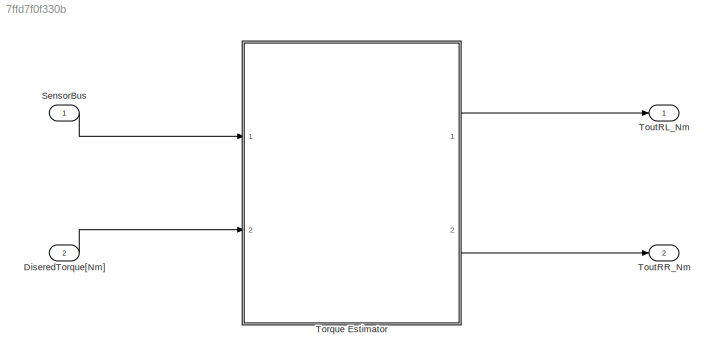
MODEL slx_7ffd7f0f330b
KIND model
CONFIG AbsTol = auto
CONFIG FixedStep = auto
CONFIG MaxStep = auto
CONFIG MinStep = auto
CONFIG RelTol = 1e-3
CONFIG SampleTimeConstraint = Unconstrained
CONFIG Solver = ode45
CONFIG SolverMode = Auto
CONFIG SolverName = ode45
CONFIG StartTime = 0.0
CONFIG StopTime = 10.0
BLOCK [Inport] DiseredTorque[Nm]
  IconDisplay = Port number
  Port = 2
BLOCK [Inport] SensorBus
  IconDisplay = Port number
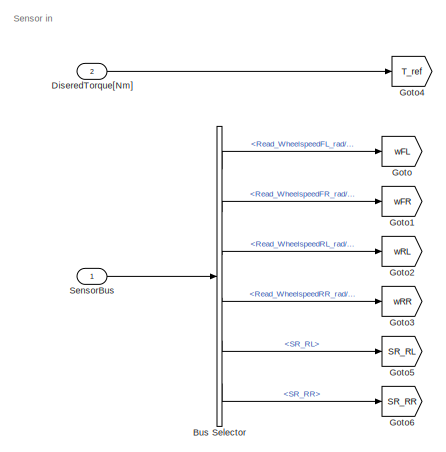
[diagram: Torque Estimator - part 1/3, top left region]
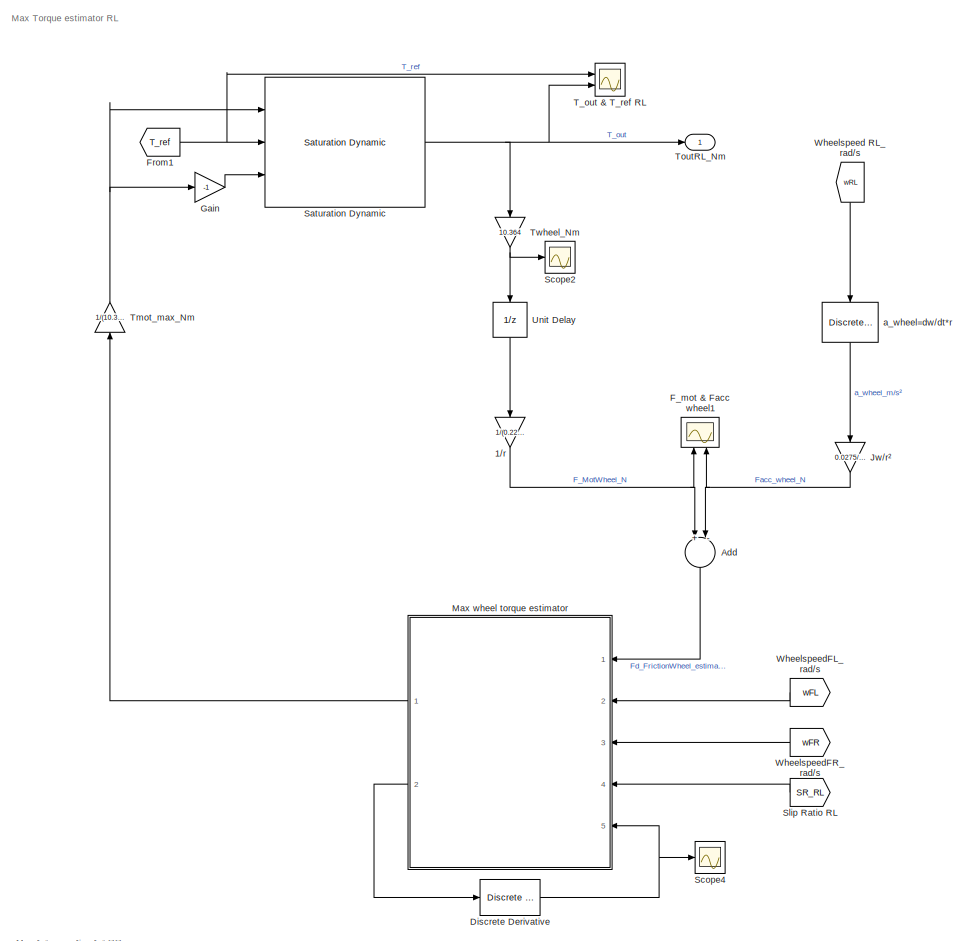
[diagram: Torque Estimator - part 2/3, top center region]
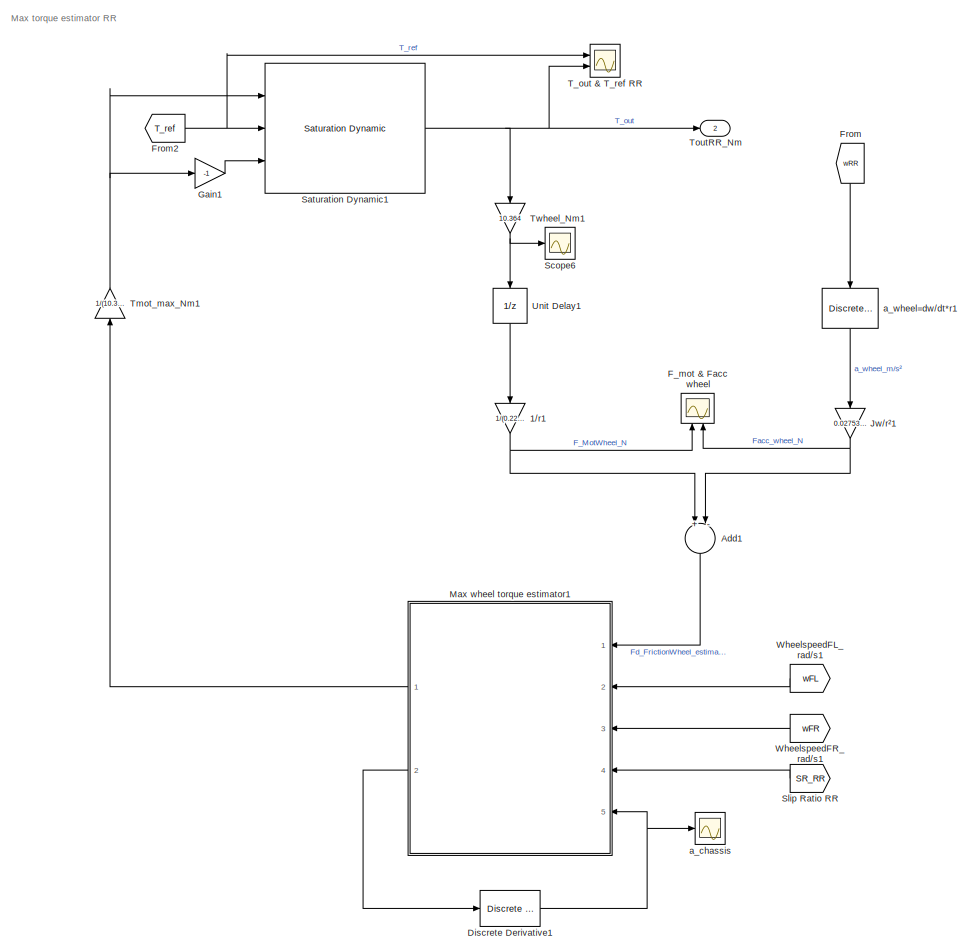
[diagram: Torque Estimator - part 3/3, bottom center region]
BLOCK [SubSystem] Torque Estimator
  Ports = [2, 2]
  RequestExecContextInheritance = off
BLOCK [Gain] Torque Estimator/1//r
  Gain = 1/(0.2289)
  OutDataTypeStr = Inherit: Inherit via internal rule
  ParamDataTypeStr = Inherit: Inherit via internal rule
  SaturateOnIntegerOverflow = off
BLOCK [Gain] Torque Estimator/1//r1
  Gain = 1/(0.2289)
  OutDataTypeStr = Inherit: Inherit via internal rule
  ParamDataTypeStr = Inherit: Inherit via internal rule
  SaturateOnIntegerOverflow = off
BLOCK [Sum] Torque Estimator/Add
  InputSameDT = off
  Inputs = +|-
  OutDataTypeStr = Inherit: Inherit via internal rule
  Ports = [2, 1]
  SaturateOnIntegerOverflow = off
BLOCK [Sum] Torque Estimator/Add1
  InputSameDT = off
  Inputs = +|-
  OutDataTypeStr = Inherit: Inherit via internal rule
  Ports = [2, 1]
  SaturateOnIntegerOverflow = off
BLOCK [BusSelector] Torque Estimator/Bus Selector
  OutputSignals = SensorBus.Read_WheelspeedFL_rad/s,SensorBus.Read_WheelspeedFR_rad/s,SensorBus.Read_WheelspeedRL_rad/s,SensorBus.Read_WheelspeedRR_rad/s,SR_RL,SR_RR
  Ports = [1, 6]
BLOCK [Reference] Torque Estimator/Discrete Derivative  REF=simulink/Discrete/Discrete Derivative
  DoSatur = off
  ICPrevScaledInput = 0.0
  InputProcessing = Inherited
  LockScale = off
  OutDataType = fixdt(1, 16)
  OutDataTypeStr = Inherit: Inherit via internal rule
  OutMax = []
  OutMin = []
  OutScaling = 2^-10
  OutputDataTypeScalingMode = Inherit via internal rule
  Ports = [1, 1]
  RndMeth = Floor
  SourceBlock = simulink/Discrete/Discrete Derivative
  SourceType = Discrete Derivative
  gainval = 1.0
BLOCK [Reference] Torque Estimator/Discrete Derivative1  REF=simulink/Discrete/Discrete Derivative
  DoSatur = off
  ICPrevScaledInput = 0.0
  InputProcessing = Inherited
  LockScale = off
  OutDataType = fixdt(1, 16)
  OutDataTypeStr = Inherit: Inherit via internal rule
  OutMax = []
  OutMin = []
  OutScaling = 2^-10
  OutputDataTypeScalingMode = Inherit via internal rule
  Ports = [1, 1]
  RndMeth = Floor
  SourceBlock = simulink/Discrete/Discrete Derivative
  SourceType = Discrete Derivative
  gainval = 1.0
BLOCK [Inport] Torque Estimator/DiseredTorque[Nm]
  IconDisplay = Port number
  Port = 2
BLOCK [Scope] Torque Estimator/F_mot & Facc wheel
  Floating = off
  NumInputPorts = 2
  Ports = [2]
  SaveName = ScopeData23
  YMax = 600~1755
  YMin = -300~-1755
  ZoomMode = xonly
BLOCK [Scope] Torque Estimator/F_mot & Facc wheel1
  Floating = off
  NumInputPorts = 2
  Ports = [2]
  SaveName = ScopeData18
  YMax = 1750~22
  YMin = 250~10
  ZoomMode = xonly
BLOCK [From] Torque Estimator/From
  GotoTag = wRR
BLOCK [From] Torque Estimator/From1
  GotoTag = T_ref
BLOCK [From] Torque Estimator/From2
  GotoTag = T_ref
BLOCK [Gain] Torque Estimator/Gain
  Gain = -1
  OutDataTypeStr = Inherit: Inherit via internal rule
  ParamDataTypeStr = Inherit: Inherit via internal rule
  SaturateOnIntegerOverflow = off
BLOCK [Gain] Torque Estimator/Gain1
  Gain = -1
  OutDataTypeStr = Inherit: Inherit via internal rule
  ParamDataTypeStr = Inherit: Inherit via internal rule
  SaturateOnIntegerOverflow = off
BLOCK [Goto] Torque Estimator/Goto
  GotoTag = wFL
BLOCK [Goto] Torque Estimator/Goto1
  GotoTag = wFR
BLOCK [Goto] Torque Estimator/Goto2
  GotoTag = wRL
BLOCK [Goto] Torque Estimator/Goto3
  GotoTag = wRR
BLOCK [Goto] Torque Estimator/Goto4
  GotoTag = T_ref
BLOCK [Goto] Torque Estimator/Goto5
  GotoTag = SR_RL
BLOCK [Goto] Torque Estimator/Goto6
  GotoTag = SR_RR
BLOCK [Gain] Torque Estimator/Jw//r²
  Gain = 0.0275/(0.2289)^2
  OutDataTypeStr = Inherit: Inherit via internal rule
  ParamDataTypeStr = Inherit: Inherit via internal rule
  SaturateOnIntegerOverflow = off
BLOCK [Gain] Torque Estimator/Jw//r²1
  Gain = 0.02753003/(0.2289)^2
  OutDataTypeStr = Inherit: Inherit via internal rule
  ParamDataTypeStr = Inherit: Inherit via internal rule
  SaturateOnIntegerOverflow = off
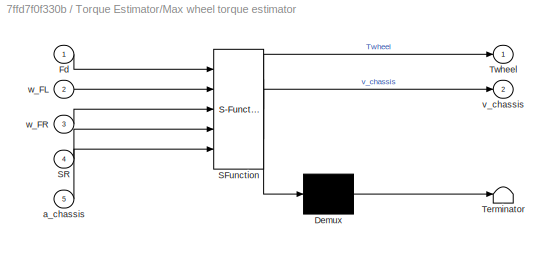
BLOCK [SubSystem] Torque Estimator/Max wheel torque estimator
  ErrorFcn = Stateflow.Translate.translate
  PermitHierarchicalResolution = ExplicitOnly
  Ports = [5, 2]
  RequestExecContextInheritance = off
  SFBlockType = MATLAB Function
  TreatAsAtomicUnit = on
BLOCK [Demux] Torque Estimator/Max wheel torque estimator/ Demux 
  Outputs = 1
  Ports = [1, 1]
BLOCK [S-Function] Torque Estimator/Max wheel torque estimator/ SFunction 
  EnableBusSupport = on
  FunctionName = sf_sfun
  PortCounts = [5 3]
  Ports = [5, 3]
  Tag = Stateflow S-Function MTTE_TractionControl 8
BLOCK [Terminator] Torque Estimator/Max wheel torque estimator/ Terminator 
BLOCK [Inport] Torque Estimator/Max wheel torque estimator/Fd
  IconDisplay = Port number
BLOCK [Inport] Torque Estimator/Max wheel torque estimator/SR
  IconDisplay = Port number
  Port = 4
BLOCK [Outport] Torque Estimator/Max wheel torque estimator/Twheel
  IconDisplay = Port number
BLOCK [Inport] Torque Estimator/Max wheel torque estimator/a_chassis
  IconDisplay = Port number
  Port = 5
BLOCK [Outport] Torque Estimator/Max wheel torque estimator/v_chassis
  IconDisplay = Port number
  Port = 2
BLOCK [Inport] Torque Estimator/Max wheel torque estimator/w_FL
  IconDisplay = Port number
  Port = 2
BLOCK [Inport] Torque Estimator/Max wheel torque estimator/w_FR
  IconDisplay = Port number
  Port = 3
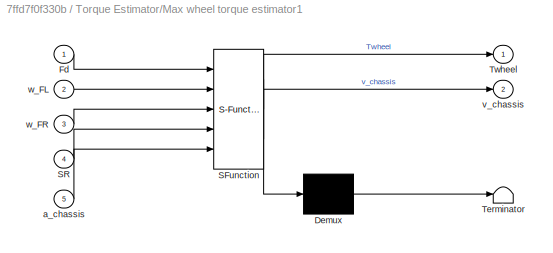
BLOCK [SubSystem] Torque Estimator/Max wheel torque estimator1
  ErrorFcn = Stateflow.Translate.translate
  PermitHierarchicalResolution = ExplicitOnly
  Ports = [5, 2]
  RequestExecContextInheritance = off
  SFBlockType = MATLAB Function
  TreatAsAtomicUnit = on
BLOCK [Demux] Torque Estimator/Max wheel torque estimator1/ Demux 
  Outputs = 1
  Ports = [1, 1]
BLOCK [S-Function] Torque Estimator/Max wheel torque estimator1/ SFunction 
  EnableBusSupport = on
  FunctionName = sf_sfun
  PortCounts = [5 3]
  Ports = [5, 3]
  Tag = Stateflow S-Function MTTE_TractionControl 7
BLOCK [Terminator] Torque Estimator/Max wheel torque estimator1/ Terminator 
BLOCK [Inport] Torque Estimator/Max wheel torque estimator1/Fd
  IconDisplay = Port number
BLOCK [Inport] Torque Estimator/Max wheel torque estimator1/SR
  IconDisplay = Port number
  Port = 4
BLOCK [Outport] Torque Estimator/Max wheel torque estimator1/Twheel
  IconDisplay = Port number
BLOCK [Inport] Torque Estimator/Max wheel torque estimator1/a_chassis
  IconDisplay = Port number
  Port = 5
BLOCK [Outport] Torque Estimator/Max wheel torque estimator1/v_chassis
  IconDisplay = Port number
  Port = 2
BLOCK [Inport] Torque Estimator/Max wheel torque estimator1/w_FL
  IconDisplay = Port number
  Port = 2
BLOCK [Inport] Torque Estimator/Max wheel torque estimator1/w_FR
  IconDisplay = Port number
  Port = 3
BLOCK [Reference] Torque Estimator/Saturation Dynamic  REF=simulink/Discontinuities/Saturation
Dynamic
  DoSatur = off
  LockScale = off
  OutDataType = fixdt(1, 16)
  OutDataTypeStr = Inherit: Same as second input
  OutMax = []
  OutMin = []
  OutScaling = 2^-10
  OutputDataTypeScalingMode = Same as second input
  Ports = [3, 1]
  RndMeth = Floor
  SourceBlock = simulink/Discontinuities/Saturation\nDynamic
  SourceType = Saturation Dynamic
BLOCK [Reference] Torque Estimator/Saturation Dynamic1  REF=simulink/Discontinuities/Saturation
Dynamic
  DoSatur = off
  LockScale = off
  OutDataType = fixdt(1, 16)
  OutDataTypeStr = Inherit: Same as second input
  OutMax = []
  OutMin = []
  OutScaling = 2^-10
  OutputDataTypeScalingMode = Same as second input
  Ports = [3, 1]
  RndMeth = Floor
  SourceBlock = simulink/Discontinuities/Saturation\nDynamic
  SourceType = Saturation Dynamic
BLOCK [Scope] Torque Estimator/Scope2
  Floating = off
  NumInputPorts = 1
  Ports = [1]
  SaveName = ScopeData22
BLOCK [Scope] Torque Estimator/Scope4
  Floating = off
  NumInputPorts = 1
  Ports = [1]
  SaveName = ScopeData24
  YMax = 10
  YMin = -10
  ZoomMode = yonly
BLOCK [Scope] Torque Estimator/Scope6
  Floating = off
  NumInputPorts = 1
  Ports = [1]
  SaveName = ScopeData26
BLOCK [Inport] Torque Estimator/SensorBus
  IconDisplay = Port number
BLOCK [From] Torque Estimator/Slip Ratio RL
  GotoTag = SR_RL
BLOCK [From] Torque Estimator/Slip Ratio RR
  GotoTag = SR_RR
BLOCK [Scope] Torque Estimator/T_out & T_ref RL
  Floating = off
  NumInputPorts = 2
  Ports = [2]
  SaveName = ScopeData17
  YMax = 50~50
  YMin = -50~-50
BLOCK [Scope] Torque Estimator/T_out & T_ref RR
  Floating = off
  NumInputPorts = 2
  Ports = [2]
  SaveName = ScopeData28
  YMax = 50~50
  YMin = -50~-50
BLOCK [Gain] Torque Estimator/Tmot_max_Nm
  Gain = 1/(10.364)
  OutDataTypeStr = Inherit: Inherit via internal rule
  ParamDataTypeStr = Inherit: Inherit via internal rule
  SaturateOnIntegerOverflow = off
BLOCK [Gain] Torque Estimator/Tmot_max_Nm1
  Gain = 1/(10.364)
  OutDataTypeStr = Inherit: Inherit via internal rule
  ParamDataTypeStr = Inherit: Inherit via internal rule
  SaturateOnIntegerOverflow = off
BLOCK [Outport] Torque Estimator/ToutRL_Nm
  IconDisplay = Port number
BLOCK [Outport] Torque Estimator/ToutRR_Nm
  IconDisplay = Port number
  Port = 2
BLOCK [Gain] Torque Estimator/Twheel_Nm
  Gain = 10.364
  OutDataTypeStr = Inherit: Inherit via internal rule
  ParamDataTypeStr = Inherit: Inherit via internal rule
  SaturateOnIntegerOverflow = off
BLOCK [Gain] Torque Estimator/Twheel_Nm1
  Gain = 10.364
  OutDataTypeStr = Inherit: Inherit via internal rule
  ParamDataTypeStr = Inherit: Inherit via internal rule
  SaturateOnIntegerOverflow = off
BLOCK [UnitDelay] Torque Estimator/Unit Delay
  InputProcessing = Elements as channels (sample based)
  SampleTime = -1
BLOCK [UnitDelay] Torque Estimator/Unit Delay1
  InputProcessing = Elements as channels (sample based)
  SampleTime = -1
BLOCK [From] Torque Estimator/Wheelspeed RL_rad//s
  GotoTag = wRL
BLOCK [From] Torque Estimator/WheelspeedFL_rad//s
  GotoTag = wFL
BLOCK [From] Torque Estimator/WheelspeedFL_rad//s1
  GotoTag = wFL
BLOCK [From] Torque Estimator/WheelspeedFR_rad//s
  GotoTag = wFR
BLOCK [From] Torque Estimator/WheelspeedFR_rad//s1
  GotoTag = wFR
BLOCK [Scope] Torque Estimator/a_chassis
  Floating = off
  NumInputPorts = 1
  Ports = [1]
  SaveName = ScopeData27
  YMax = 10
  YMin = -10
  ZoomMode = yonly
BLOCK [Reference] Torque Estimator/a_wheel=dw//dt*r  REF=simulink/Discrete/Discrete Derivative
  DoSatur = off
  ICPrevScaledInput = 0.0
  InputProcessing = Inherited
  LockScale = off
  OutDataType = fixdt(1, 16)
  OutDataTypeStr = Inherit: Inherit via internal rule
  OutMax = []
  OutMin = []
  OutScaling = 2^-10
  OutputDataTypeScalingMode = Inherit via internal rule
  Ports = [1, 1]
  RndMeth = Floor
  SourceBlock = simulink/Discrete/Discrete Derivative
  SourceType = Discrete Derivative
  gainval = 0.2289
BLOCK [Reference] Torque Estimator/a_wheel=dw//dt*r1  REF=simulink/Discrete/Discrete Derivative
  DoSatur = off
  ICPrevScaledInput = 0.0
  InputProcessing = Inherited
  LockScale = off
  OutDataType = fixdt(1, 16)
  OutDataTypeStr = Inherit: Inherit via internal rule
  OutMax = []
  OutMin = []
  OutScaling = 2^-10
  OutputDataTypeScalingMode = Inherit via internal rule
  Ports = [1, 1]
  RndMeth = Floor
  SourceBlock = simulink/Discrete/Discrete Derivative
  SourceType = Discrete Derivative
  gainval = 0.2289
BLOCK [Outport] ToutRL_Nm
  IconDisplay = Port number
BLOCK [Outport] ToutRR_Nm
  IconDisplay = Port number
  Port = 2
ANNOTATION Torque Estimator: Max Torque estimator RL
ANNOTATION Torque Estimator: Max torque estimator RR
ANNOTATION Torque Estimator: Sensor in
LINE DiseredTorque[Nm]:1 -> Torque Estimator:2
LINE SensorBus:1 -> Torque Estimator:1
NET Torque Estimator/1//r1:1 -> Torque Estimator/Add1:1, Torque Estimator/F_mot & Facc wheel:1
NET Torque Estimator/1//r:1 -> Torque Estimator/Add:1, Torque Estimator/F_mot & Facc wheel1:1
LINE Torque Estimator/Add1:1 -> Torque Estimator/Max wheel torque estimator1:1
LINE Torque Estimator/Add:1 -> Torque Estimator/Max wheel torque estimator:1
LINE Torque Estimator/Bus Selector:1 -> Torque Estimator/Goto:1
LINE Torque Estimator/Bus Selector:2 -> Torque Estimator/Goto1:1
LINE Torque Estimator/Bus Selector:3 -> Torque Estimator/Goto2:1
LINE Torque Estimator/Bus Selector:4 -> Torque Estimator/Goto3:1
LINE Torque Estimator/Bus Selector:5 -> Torque Estimator/Goto5:1
LINE Torque Estimator/Bus Selector:6 -> Torque Estimator/Goto6:1
NET Torque Estimator/Discrete Derivative1:1 -> Torque Estimator/Max wheel torque estimator1:5, Torque Estimator/a_chassis:1
NET Torque Estimator/Discrete Derivative:1 -> Torque Estimator/Max wheel torque estimator:5, Torque Estimator/Scope4:1
LINE Torque Estimator/DiseredTorque[Nm]:1 -> Torque Estimator/Goto4:1
NET Torque Estimator/From1:1 -> Torque Estimator/Saturation Dynamic:2, Torque Estimator/T_out & T_ref RL:1
NET Torque Estimator/From2:1 -> Torque Estimator/Saturation Dynamic1:2, Torque Estimator/T_out & T_ref RR:1
LINE Torque Estimator/From:1 -> Torque Estimator/a_wheel=dw//dt*r1:1
LINE Torque Estimator/Gain1:1 -> Torque Estimator/Saturation Dynamic1:3
LINE Torque Estimator/Gain:1 -> Torque Estimator/Saturation Dynamic:3
NET Torque Estimator/Jw//r²1:1 -> Torque Estimator/Add1:2, Torque Estimator/F_mot & Facc wheel:2
NET Torque Estimator/Jw//r²:1 -> Torque Estimator/Add:2, Torque Estimator/F_mot & Facc wheel1:2
LINE Torque Estimator/Max wheel torque estimator1:1 -> Torque Estimator/Tmot_max_Nm1:1
LINE Torque Estimator/Max wheel torque estimator1:2 -> Torque Estimator/Discrete Derivative1:1
LINE Torque Estimator/Max wheel torque estimator:1 -> Torque Estimator/Tmot_max_Nm:1
LINE Torque Estimator/Max wheel torque estimator:2 -> Torque Estimator/Discrete Derivative:1
NET Torque Estimator/Saturation Dynamic1:1 -> Torque Estimator/T_out & T_ref RR:2, Torque Estimator/ToutRR_Nm:1, Torque Estimator/Twheel_Nm1:1
NET Torque Estimator/Saturation Dynamic:1 -> Torque Estimator/T_out & T_ref RL:2, Torque Estimator/ToutRL_Nm:1, Torque Estimator/Twheel_Nm:1
LINE Torque Estimator/SensorBus:1 -> Torque Estimator/Bus Selector:1
LINE Torque Estimator/Slip Ratio RL:1 -> Torque Estimator/Max wheel torque estimator:4
LINE Torque Estimator/Slip Ratio RR:1 -> Torque Estimator/Max wheel torque estimator1:4
NET Torque Estimator/Tmot_max_Nm1:1 -> Torque Estimator/Gain1:1, Torque Estimator/Saturation Dynamic1:1
NET Torque Estimator/Tmot_max_Nm:1 -> Torque Estimator/Gain:1, Torque Estimator/Saturation Dynamic:1
NET Torque Estimator/Twheel_Nm1:1 -> Torque Estimator/Scope6:1, Torque Estimator/Unit Delay1:1
NET Torque Estimator/Twheel_Nm:1 -> Torque Estimator/Scope2:1, Torque Estimator/Unit Delay:1
LINE Torque Estimator/Unit Delay1:1 -> Torque Estimator/1//r1:1
LINE Torque Estimator/Unit Delay:1 -> Torque Estimator/1//r:1
LINE Torque Estimator/Wheelspeed RL_rad//s:1 -> Torque Estimator/a_wheel=dw//dt*r:1
LINE Torque Estimator/WheelspeedFL_rad//s1:1 -> Torque Estimator/Max wheel torque estimator1:2
LINE Torque Estimator/WheelspeedFL_rad//s:1 -> Torque Estimator/Max wheel torque estimator:2
LINE Torque Estimator/WheelspeedFR_rad//s1:1 -> Torque Estimator/Max wheel torque estimator1:3
LINE Torque Estimator/WheelspeedFR_rad//s:1 -> Torque Estimator/Max wheel torque estimator:3
LINE Torque Estimator/a_wheel=dw//dt*r1:1 -> Torque Estimator/Jw//r²1:1
LINE Torque Estimator/a_wheel=dw//dt*r:1 -> Torque Estimator/Jw//r²:1
LINE Torque Estimator:1 -> ToutRL_Nm:1
LINE Torque Estimator:2 -> ToutRR_Nm:1
note: NET lines group one-source signal fan-out (src -> all destinations, sorted); 1:1 wires keep LINE
CHART Torque Estimator/Max wheel torque estimator1 states=1 transitions=1
  STATE_LABEL 'eML_blk_kernel()'
  STATE_LABEL 'SCRIPT:\nfunction [Twheel,v_chassis] = TorqueEstimation(Fd,w_FL,w_FR,SR,a_chassis)\n%% estimator wheel torque\n\nJw =0.0275; %[kgm²] Massatraagheid wiel (roterende componenten)\nr=0.2286; %[m] straal wiel\na=0.9; %relacation factor a=Vchasis/Vwheel\n\nTmax= 400; %[Nm] Wheel Torque\n\nw_chassis=(w_FL+w_FR)/2; % average speed\nv_chassis=w_chassis*r; %[m/s] velocity of the chasis\n\nif SR <0.08\n    Twheel=Tmax;\ne...<+54ch>'
CHART Torque Estimator/Max wheel torque estimator states=1 transitions=1
  STATE_LABEL 'eML_blk_kernel()'
  STATE_LABEL 'SCRIPT:\nfunction [Twheel,v_chassis] = TorqueEstimation(Fd,w_FL,w_FR,SR,a_chassis)\n%% estimator wheel torque\n\nJw =0.0275; %[kgm²] Massatraagheid wiel (roterende componenten)\nr=0.2286; %[m] straal wiel\na=0.9; %relacation factor a=Vchasis/Vwheel\n\nTmax= 400; %[Nm] Wheel Torque\n\nw_chassis=(w_FL+w_FR)/2; % average speed\nv_chassis=w_chassis*r; %[m/s] velocity of the chasis\n\nif SR <0.08\n    Twheel=Tmax;\ne...<+54ch>'
